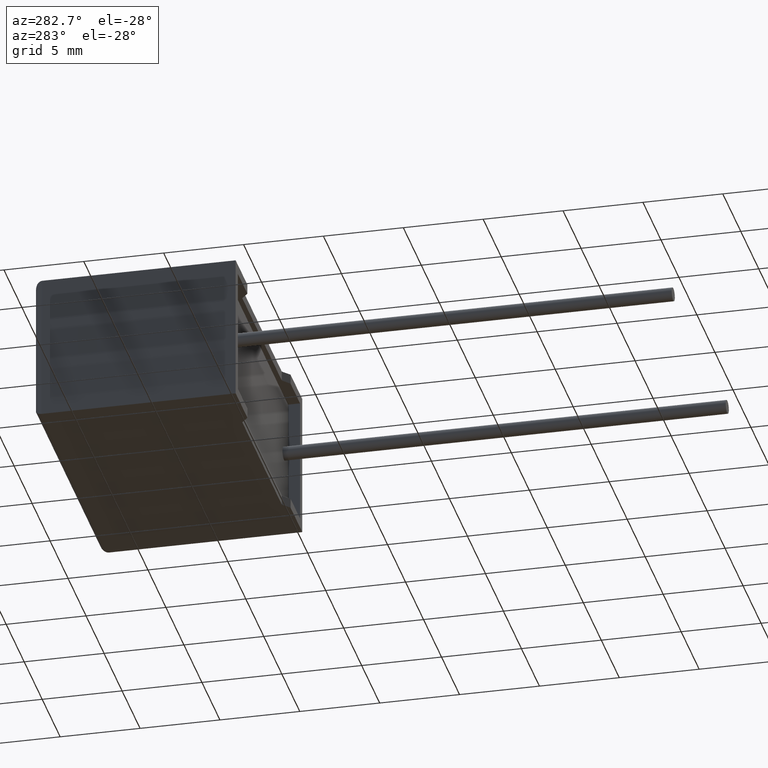
[diagram: clean part render]
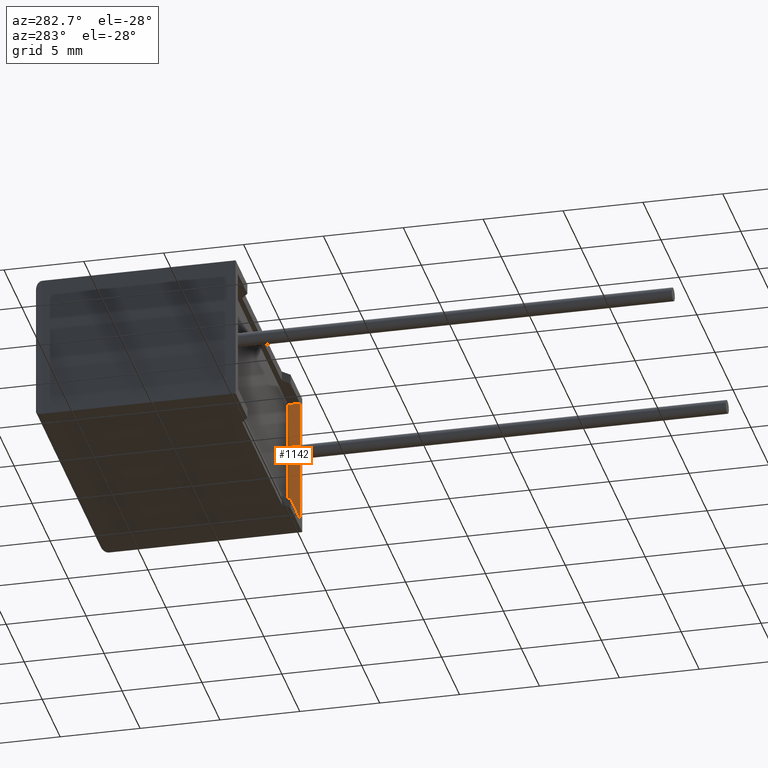
[diagram: same view with one face highlighted and labeled with its STEP entity id]
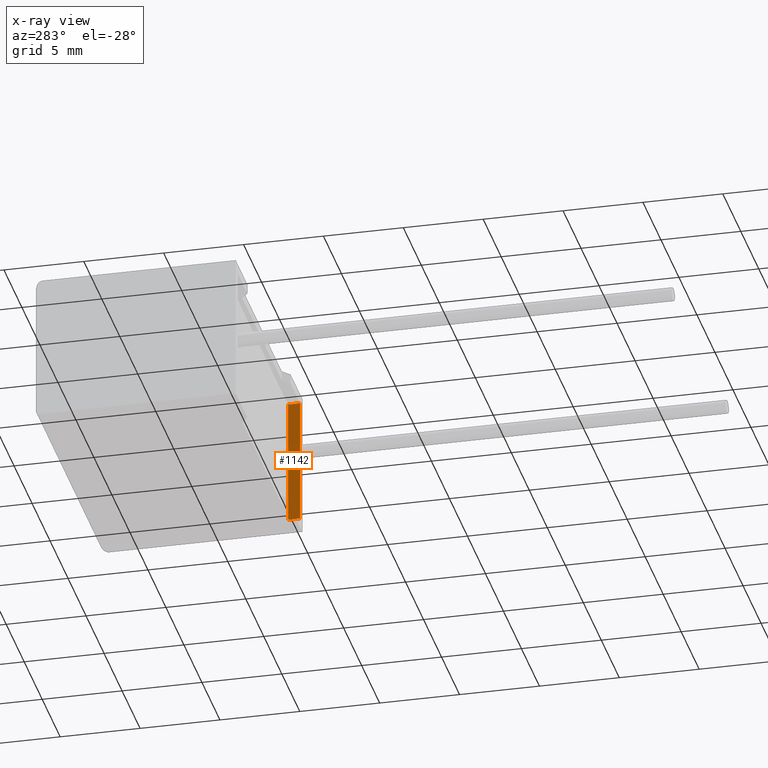
[diagram: x-ray of the same camera — body ghosted, the highlighted face saturated]
A machine part, auxiliary view. The second image highlights one B-rep face of the part: STEP entity #1142.
The next image is the same camera in x-ray: the body ghosted, the highlighted face saturated — about 0% of this face is hidden behind the body in this view.
In plain terms, the highlighted planar face has unit normal (1, 0, 0).
Its self-contained STEP definition (entity closure, byte-faithful):
#18 = PLANE ( 'NONE',  #2743 ) ;
#197 = CARTESIAN_POINT ( 'NONE',  ( 17.88333339499999800, 0.0000000000000000000, 0.6166666049999995900 ) ) ;
#297 = ORIENTED_EDGE ( 'NONE', *, *, #2855, .T. ) ;
#328 = VECTOR ( 'NONE', #1091, 1000.000000000000000 ) ;
#338 = DIRECTION ( 'NONE',  ( -0.0000000000000000000, -1.000000000000000000, -0.0000000000000000000 ) ) ;
#368 = CARTESIAN_POINT ( 'NONE',  ( 17.88333339499999800, 0.7500000000000000000, 0.6166666049999995900 ) ) ;
#417 = VERTEX_POINT ( 'NONE', #1487 ) ;
#465 = CARTESIAN_POINT ( 'NONE',  ( 17.88333339499999800, 0.7500000000000000000, 0.6166666049999995900 ) ) ;
#483 = DIRECTION ( 'NONE',  ( 0.0000000000000000000, 0.0000000000000000000, 1.000000000000000000 ) ) ;
#608 = VECTOR ( 'NONE', #338, 1000.000000000000000 ) ;
#842 = ORIENTED_EDGE ( 'NONE', *, *, #2610, .T. ) ;
#877 = LINE ( 'NONE', #2512, #328 ) ;
#969 = CARTESIAN_POINT ( 'NONE',  ( 17.88333339499999800, 0.0000000000000000000, 8.583333395000000400 ) ) ;
#980 = VECTOR ( 'NONE', #2695, 1000.000000000000000 ) ;
#1080 = FACE_OUTER_BOUND ( 'NONE', #2549, .T. ) ;
#1091 = DIRECTION ( 'NONE',  ( -0.0000000000000000000, -1.000000000000000000, -0.0000000000000000000 ) ) ;
#1142 = ADVANCED_FACE ( 'NONE', ( #1080 ), #18, .F. ) ;
#1324 = EDGE_CURVE ( 'NONE', #1995, #1988, #877, .T. ) ;
#1419 = CARTESIAN_POINT ( 'NONE',  ( 17.88333339499999800, 0.7500000000000000000, 8.583333395000000400 ) ) ;
#1446 = LINE ( 'NONE', #465, #2475 ) ;
#1487 = CARTESIAN_POINT ( 'NONE',  ( 17.88333339499999800, 0.7500000000000000000, 0.6166666049999995900 ) ) ;
#1854 = ORIENTED_EDGE ( 'NONE', *, *, #2563, .F. ) ;
#1882 = LINE ( 'NONE', #368, #608 ) ;
#1988 = VERTEX_POINT ( 'NONE', #969 ) ;
#1995 = VERTEX_POINT ( 'NONE', #1419 ) ;
#2133 = DIRECTION ( 'NONE',  ( 0.0000000000000000000, 0.0000000000000000000, -1.000000000000000000 ) ) ;
#2148 = CARTESIAN_POINT ( 'NONE',  ( 17.88333339499999800, 0.7500000000000000000, 0.6166666049999995900 ) ) ;
#2154 = ORIENTED_EDGE ( 'NONE', *, *, #1324, .F. ) ;
#2221 = CARTESIAN_POINT ( 'NONE',  ( 17.88333339499999800, 0.0000000000000000000, 0.6166666049999995900 ) ) ;
#2285 = VERTEX_POINT ( 'NONE', #2221 ) ;
#2475 = VECTOR ( 'NONE', #483, 1000.000000000000000 ) ;
#2512 = CARTESIAN_POINT ( 'NONE',  ( 17.88333339499999800, 0.7500000000000000000, 8.583333395000000400 ) ) ;
#2549 = EDGE_LOOP ( 'NONE', ( #842, #2154, #1854, #297 ) ) ;
#2563 = EDGE_CURVE ( 'NONE', #417, #1995, #1446, .T. ) ;
#2610 = EDGE_CURVE ( 'NONE', #2285, #1988, #2939, .T. ) ;
#2614 = DIRECTION ( 'NONE',  ( 1.000000000000000000, 0.0000000000000000000, 0.0000000000000000000 ) ) ;
#2695 = DIRECTION ( 'NONE',  ( 0.0000000000000000000, 0.0000000000000000000, 1.000000000000000000 ) ) ;
#2743 = AXIS2_PLACEMENT_3D ( 'NONE', #2148, #2614, #2133 ) ;
#2855 = EDGE_CURVE ( 'NONE', #417, #2285, #1882, .T. ) ;
#2939 = LINE ( 'NONE', #197, #980 ) ;